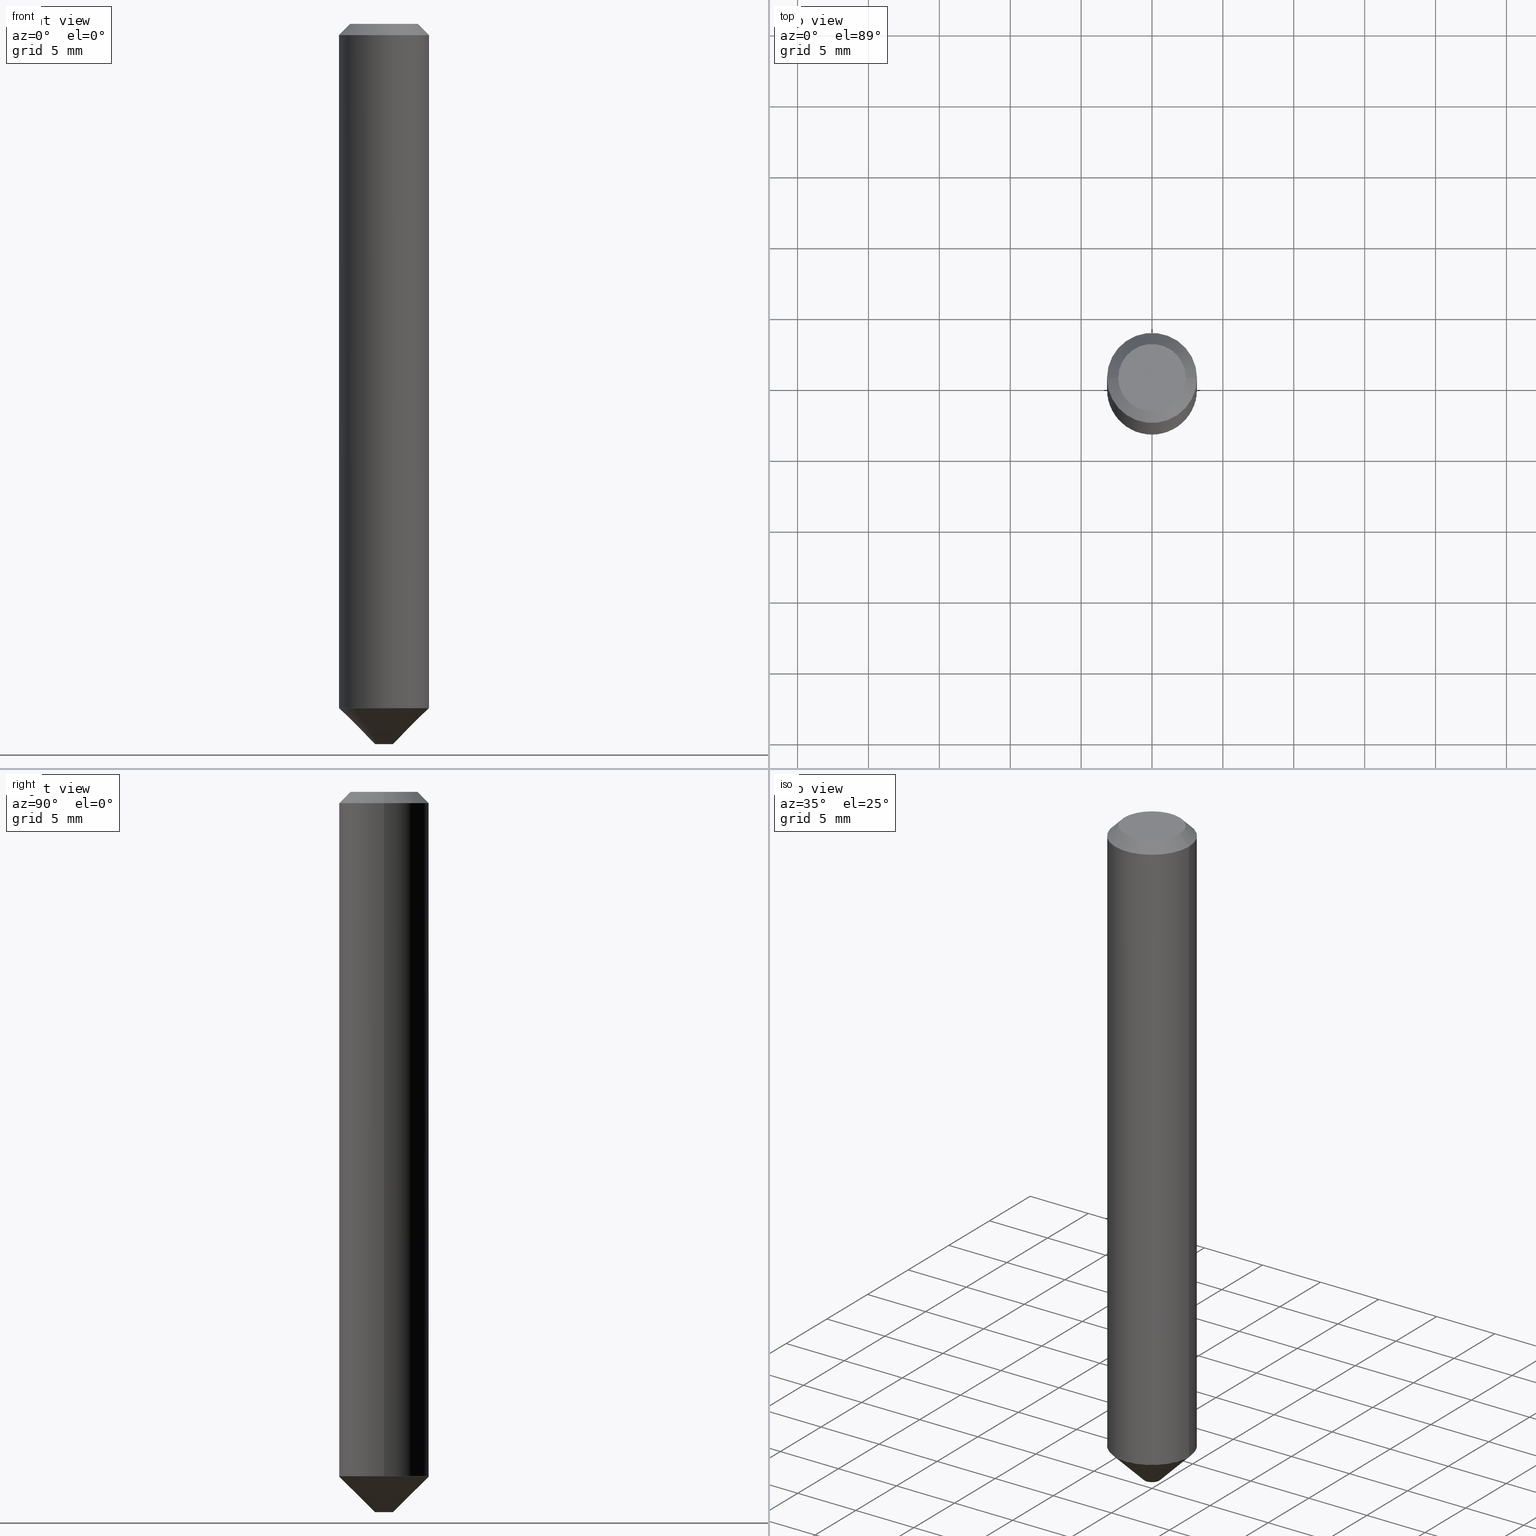
[diagram: canonical four-view strip — front | top / right | iso, engineering-drawing reading convention]
A machine part, canonical four-view strip (front | top / right | iso — engineering-drawing reading convention). The complete STEP part file that produces these views, byte-faithful:
ISO-10303-21;
HEADER;
FILE_DESCRIPTION (( 'STEP AP203' ),
    '1' );
FILE_NAME ('74255.STEP',
    '2025-06-20T12:14:39',
    ( '' ),
    ( '' ),
    'SwSTEP 2.0',
    'SolidWorks 2024',
    '' );
FILE_SCHEMA (( 'CONFIG_CONTROL_DESIGN' ));
ENDSEC;

DATA;
#1 = CYLINDRICAL_SURFACE ( 'NONE', #378, 0.1250000000000001388 ) ;
#2 = DIRECTION ( 'NONE',  ( -1.000000000000000000, 6.982962677686265922E-15, -4.876176775795935793E-29 ) ) ;
#3 = CC_DESIGN_PERSON_AND_ORGANIZATION_ASSIGNMENT ( #387, #102, ( #209 ) ) ;
#4 = ORIENTED_EDGE ( 'NONE', *, *, #87, .F. ) ;
#5 = CONICAL_SURFACE ( 'NONE', #336, 0.1250000000000002498, 0.7853981633981995669 ) ;
#6 = DIRECTION ( 'NONE',  ( -2.433702413238368813E-29, 3.508331483244413015E-15, 1.000000000000000000 ) ) ;
#7 = CALENDAR_DATE ( 2025, 20, 6 ) ;
#8 = ORIENTED_EDGE ( 'NONE', *, *, #40, .T. ) ;
#9 = DATE_AND_TIME ( #238, #385 ) ;
#10 = AXIS2_PLACEMENT_3D ( 'NONE', #352, #349, #2 ) ;
#11 = LOCAL_TIME ( 8, 14, 39.00000000000000000, #391 ) ;
#12 = APPROVAL_DATE_TIME ( #9, #74 ) ;
#13 = LINE ( 'NONE', #178, #41 ) ;
#14 = DIRECTION ( 'NONE',  ( -2.445468806185136597E-29, 3.491481338843145583E-15, 1.000000000000000000 ) ) ;
#15 = CARTESIAN_POINT ( 'NONE',  ( 4.890937612370273194E-29, -6.982962677686291165E-15, -2.000000000000000000 ) ) ;
#16 = CONICAL_SURFACE ( 'NONE', #22, 0.1250000000000002498, 0.7853981633981995669 ) ;
#17 = LOCAL_TIME ( 8, 14, 39.00000000000000000, #297 ) ;
#18 = ORIENTED_EDGE ( 'NONE', *, *, #314, .F. ) ;
#19 = EDGE_CURVE ( 'NONE', #244, #246, #93, .T. ) ;
#20 = CARTESIAN_POINT ( 'NONE',  ( 4.646390731751759422E-29, -6.633814543801976252E-15, -1.899999999999999911 ) ) ;
#21 = FACE_OUTER_BOUND ( 'NONE', #273, .T. ) ;
#22 = AXIS2_PLACEMENT_3D ( 'NONE', #165, #47, #267 ) ;
#23 = APPROVAL_PERSON_ORGANIZATION ( #230, #74, #270 ) ;
#24 = CARTESIAN_POINT ( 'NONE',  ( 4.647607582958377980E-29, -6.635568709543598311E-15, -1.900499999999999856 ) ) ;
#25 = ADVANCED_FACE ( 'NONE', ( #291 ), #191, .F. ) ;
#26 = DIRECTION ( 'NONE',  ( -0.7071067811865452413, 2.468850131082233000E-15, -0.7071067811865497932 ) ) ;
#27 = CARTESIAN_POINT ( 'NONE',  ( 7.642090019328606165E-31, -1.091087918388490760E-16, -0.03125000000000022204 ) ) ;
#28 = DIRECTION ( 'NONE',  ( 0.7071067811865452413, -7.319954787623248157E-15, -0.7071067811865497932 ) ) ;
#29 = ORIENTED_EDGE ( 'NONE', *, *, #163, .F. ) ;
#30 = AXIS2_PLACEMENT_3D ( 'NONE', #395, #174, #361 ) ;
#31 = PRODUCT_DEFINITION_FORMATION_WITH_SPECIFIED_SOURCE ( 'ANY', '', #373, .NOT_KNOWN. ) ;
#32 = DIRECTION ( 'NONE',  ( -4.851104656541626918E-15, -0.7071067811866466046, -0.7071067811864484298 ) ) ;
#33 = EDGE_LOOP ( 'NONE', ( #406, #159, #4, #100 ) ) ;
#34 = APPROVAL ( #394, 'UNSPECIFIED' ) ;
#35 = CARTESIAN_POINT ( 'NONE',  ( -5.237222008264224744E-16, -0.02500000000000698885, -2.000000000000000444 ) ) ;
#36 = AXIS2_PLACEMENT_3D ( 'NONE', #358, #213, #206 ) ;
#37 = ADVANCED_FACE ( 'NONE', ( #193 ), #177, .T. ) ;
#38 = ORIENTED_EDGE ( 'NONE', *, *, #180, .T. ) ;
#39 = CLOSED_SHELL ( 'NONE', ( #329, #386, #106, #261, #208, #129, #285, #25 ) ) ;
#40 = EDGE_CURVE ( 'NONE', #322, #204, #233, .T. ) ;
#41 = VECTOR ( 'NONE', #143, 39.37007874015748143 ) ;
#42 = DIRECTION ( 'NONE',  ( 4.937700262165222518E-15, 0.7071067811866417196, -0.7071067811864533148 ) ) ;
#43 = COORDINATED_UNIVERSAL_TIME_OFFSET ( 5, 0, .BEHIND. ) ;
#44 = CARTESIAN_POINT ( 'NONE',  ( 1.735134032663218057E-29, -1.080289983533779942E-14, -1.899999999999999911 ) ) ;
#45 = PERSON_AND_ORGANIZATION_ROLE ( 'creator' ) ;
#46 = DIRECTION ( 'NONE',  ( -2.445468806185136597E-29, 3.491481338843145583E-15, 1.000000000000000000 ) ) ;
#47 = DIRECTION ( 'NONE',  ( -2.445468806185136597E-29, 3.491481338843145583E-15, 1.000000000000000000 ) ) ;
#48 = AXIS2_PLACEMENT_3D ( 'NONE', #58, #262, #135 ) ;
#49 = EDGE_CURVE ( 'NONE', #308, #79, #317, .T. ) ;
#50 = ORGANIZATION ( 'UNSPECIFIED', 'UNSPECIFIED', '' ) ;
#51 = DIRECTION ( 'NONE',  ( 0.7071067811870787034, -2.468850131087820502E-15, 0.7071067811860163310 ) ) ;
#52 = PRODUCT_DEFINITION_SHAPE ( 'NONE', 'NONE',  #115 ) ;
#53 = DIRECTION ( 'NONE',  ( 2.433702413238368813E-29, -3.508331483244413410E-15, -1.000000000000000000 ) ) ;
#54 = EDGE_LOOP ( 'NONE', ( #249, #229, #311, #294 ) ) ;
#55 = DIRECTION ( 'NONE',  ( 2.438088387897960049E-29, -3.491481338843145188E-15, -1.000000000000000000 ) ) ;
#56 = AXIS2_PLACEMENT_3D ( 'NONE', #414, #95, #403 ) ;
#57 = CARTESIAN_POINT ( 'NONE',  ( 4.646390731751758301E-29, -6.633814543801974674E-15, -1.899999999999999467 ) ) ;
#58 = CARTESIAN_POINT ( 'NONE',  ( -9.358861080966640236E-47, 1.336197326842803670E-32, 3.827021247335477232E-18 ) ) ;
#59 = DIRECTION ( 'NONE',  ( -6.982962677686265922E-15, -1.000000000000000000, 4.370956789862820361E-15 ) ) ;
#60 =( LENGTH_UNIT ( ) NAMED_UNIT ( * ) SI_UNIT ( $, .METRE. ) );
#61 = ORIENTED_EDGE ( 'NONE', *, *, #404, .F. ) ;
#62 = CIRCLE ( 'NONE', #48, 0.09374999999999998612 ) ;
#63 = DIRECTION ( 'NONE',  ( 6.982962677686265133E-15, 1.000000000000000000, -4.388510833195603583E-15 ) ) ;
#64 = VERTEX_POINT ( 'NONE', #131 ) ;
#65 = DIRECTION ( 'NONE',  ( 0.000000000000000000, 0.000000000000000000, 1.000000000000000000 ) ) ;
#66 = EDGE_CURVE ( 'NONE', #244, #278, #62, .T. ) ;
#67 = EDGE_LOOP ( 'NONE', ( #402, #376 ) ) ;
#68 = CIRCLE ( 'NONE', #389, 0.1250000000000000278 ) ;
#69 = PERSON_AND_ORGANIZATION_ROLE ( 'creator' ) ;
#70 = VECTOR ( 'NONE', #32, 39.37007874015748143 ) ;
#71 = DATE_AND_TIME ( #300, #17 ) ;
#72 = VERTEX_POINT ( 'NONE', #382 ) ;
#73 =( NAMED_UNIT ( * ) SI_UNIT ( $, .STERADIAN. ) SOLID_ANGLE_UNIT ( ) );
#74 = APPROVAL ( #350, 'UNSPECIFIED' ) ;
#75 = CALENDAR_DATE ( 2025, 20, 6 ) ;
#76 = DIRECTION ( 'NONE',  ( -2.433702413238368813E-29, 3.508331483244413015E-15, 1.000000000000000000 ) ) ;
#77 = CARTESIAN_POINT ( 'NONE',  ( 7.642090019328606165E-31, -1.091087918388490760E-16, -0.03125000000000022204 ) ) ;
#78 = ADVANCED_FACE ( 'NONE', ( #231 ), #323, .T. ) ;
#79 = VERTEX_POINT ( 'NONE', #364 ) ;
#80 = CARTESIAN_POINT ( 'NONE',  ( -0.09374999999999998612, 7.092071469525108711E-16, 3.827021247330707859E-18 ) ) ;
#81 = AXIS2_PLACEMENT_3D ( 'NONE', #109, #359, #341 ) ;
#82 = CIRCLE ( 'NONE', #179, 0.02500000000000000486 ) ;
#83 = CC_DESIGN_APPROVAL ( #175, ( #209 ) ) ;
#84 = EDGE_LOOP ( 'NONE', ( #61, #128, #168, #124 ) ) ;
#85 = LINE ( 'NONE', #126, #326 ) ;
#86 = ORIENTED_EDGE ( 'NONE', *, *, #180, .F. ) ;
#87 = EDGE_CURVE ( 'NONE', #223, #64, #290, .T. ) ;
#88 = FACE_OUTER_BOUND ( 'NONE', #257, .T. ) ;
#89 = ORIENTED_EDGE ( 'NONE', *, *, #224, .F. ) ;
#90 = EDGE_CURVE ( 'NONE', #266, #246, #68, .T. ) ;
#91 = DIRECTION ( 'NONE',  ( -4.950059904243031787E-15, -0.7088767522788980147, 0.7053323685175109103 ) ) ;
#92 = VECTOR ( 'NONE', #28, 39.37007874015748143 ) ;
#93 = LINE ( 'NONE', #315, #396 ) ;
#94 = VECTOR ( 'NONE', #318, 39.37007874015748143 ) ;
#95 = DIRECTION ( 'NONE',  ( 2.433702413238368813E-29, -3.508331483244413410E-15, -1.000000000000000000 ) ) ;
#96 = ORIENTED_EDGE ( 'NONE', *, *, #248, .F. ) ;
#97 = DIRECTION ( 'NONE',  ( -2.445468806185136597E-29, 3.491481338843145583E-15, 1.000000000000000000 ) ) ;
#98 = APPLICATION_PROTOCOL_DEFINITION ( 'international standard', 'config_control_design', 1994, #247 ) ;
#99 = VERTEX_POINT ( 'NONE', #35 ) ;
#100 = ORIENTED_EDGE ( 'NONE', *, *, #292, .F. ) ;
#101 = CC_DESIGN_PERSON_AND_ORGANIZATION_ASSIGNMENT ( #268, #69, ( #31 ) ) ;
#102 = PERSON_AND_ORGANIZATION_ROLE ( 'classification_officer' ) ;
#103 = ORIENTED_EDGE ( 'NONE', *, *, #235, .F. ) ;
#104 = COORDINATED_UNIVERSAL_TIME_OFFSET ( 5, 0, .BEHIND. ) ;
#105 = CARTESIAN_POINT ( 'NONE',  ( 0.1250000000000002498, -7.504939137843339665E-15, -1.899499999999999966 ) ) ;
#106 = ADVANCED_FACE ( 'NONE', ( #272 ), #5, .T. ) ;
#107 =( NAMED_UNIT ( * ) PLANE_ANGLE_UNIT ( ) SI_UNIT ( $, .RADIAN. ) );
#108 = APPROVAL_ROLE ( '' ) ;
#109 = CARTESIAN_POINT ( 'NONE',  ( 4.647607582958377980E-29, -6.635568709543598311E-15, -1.900499999999999856 ) ) ;
#110 = DATE_AND_TIME ( #75, #271 ) ;
#111 = AXIS2_PLACEMENT_3D ( 'NONE', #44, #6, #325 ) ;
#112 = DIRECTION ( 'NONE',  ( 1.000000000000000000, -6.982962677686266711E-15, 4.876176775795935793E-29 ) ) ;
#113 = CC_DESIGN_APPROVAL ( #34, ( #31 ) ) ;
#114 = ORIENTED_EDGE ( 'NONE', *, *, #19, .F. ) ;
#115 = PRODUCT_DEFINITION ( 'UNKNOWN', '', #31, #164 ) ;
#116 = CARTESIAN_POINT ( 'NONE',  ( 7.642090019328606165E-31, -1.091087918388490760E-16, -0.03125000000000022204 ) ) ;
#117 = APPLICATION_CONTEXT ( 'configuration controlled 3d designs of mechanical parts and assemblies' ) ;
#118 = ORIENTED_EDGE ( 'NONE', *, *, #66, .F. ) ;
#119 = CARTESIAN_POINT ( 'NONE',  ( 4.889760973075597116E-29, -6.984647692126418776E-15, -2.000000000000000444 ) ) ;
#120 = CARTESIAN_POINT ( 'NONE',  ( 4.889760973075597116E-29, -6.984647692126418776E-15, -2.000000000000000444 ) ) ;
#121 = ORIENTED_EDGE ( 'NONE', *, *, #274, .T. ) ;
#122 = DIRECTION ( 'NONE',  ( -2.445468806185136597E-29, 3.491481338843145583E-15, 1.000000000000000000 ) ) ;
#123 = EDGE_CURVE ( 'NONE', #322, #79, #296, .T. ) ;
#124 = ORIENTED_EDGE ( 'NONE', *, *, #274, .F. ) ;
#125 = DIRECTION ( 'NONE',  ( 6.982962677686265133E-15, 1.000000000000000000, -4.388510833195603583E-15 ) ) ;
#126 = CARTESIAN_POINT ( 'NONE',  ( 0.1250000000000002498, -7.504939137843339665E-15, -1.899499999999999966 ) ) ;
#127 = CIRCLE ( 'NONE', #307, 0.02500000000000000486 ) ;
#128 = ORIENTED_EDGE ( 'NONE', *, *, #237, .T. ) ;
#129 = ADVANCED_FACE ( 'NONE', ( #243 ), #400, .T. ) ;
#130 = PLANE ( 'NONE',  #320 ) ;
#131 = CARTESIAN_POINT ( 'NONE',  ( -0.1250000000000002498, -5.743890383432428727E-15, -1.899499999999999966 ) ) ;
#132 = DIRECTION ( 'NONE',  ( 1.000000000000000000, -6.982962677686266711E-15, 4.876176775795935793E-29 ) ) ;
#133 = DIRECTION ( 'NONE',  ( 6.982962677686265133E-15, 1.000000000000000000, -4.388510833195603583E-15 ) ) ;
#134 = PERSON_AND_ORGANIZATION_ROLE ( 'design_owner' ) ;
#135 = DIRECTION ( 'NONE',  ( 1.000000000000000000, -6.982962677686266711E-15, 4.875989565238656407E-29 ) ) ;
#136 = DIRECTION ( 'NONE',  ( 1.000000000000000000, -6.982962677686264344E-15, 0.000000000000000000 ) ) ;
#137 = DATE_AND_TIME ( #7, #218 ) ;
#138 = SHAPE_DEFINITION_REPRESENTATION ( #52, #150 ) ;
#139 = EDGE_LOOP ( 'NONE', ( #215, #152, #306, #182 ) ) ;
#140 = CIRCLE ( 'NONE', #275, 0.1250000000000000278 ) ;
#141 = PERSON_AND_ORGANIZATION ( #232, #50 ) ;
#142 = ADVANCED_FACE ( 'NONE', ( #239 ), #401, .F. ) ;
#143 = DIRECTION ( 'NONE',  ( -0.7071067811870787034, 7.493145998872274248E-15, 0.7071067811860163310 ) ) ;
#144 = APPLICATION_PROTOCOL_DEFINITION ( 'international standard', 'config_control_design', 1994, #117 ) ;
#145 = APPROVAL_ROLE ( '' ) ;
#146 = CC_DESIGN_PERSON_AND_ORGANIZATION_ASSIGNMENT ( #141, #212, ( #31 ) ) ;
#147 = EDGE_LOOP ( 'NONE', ( #96, #221, #374, #114 ) ) ;
#148 = AXIS2_PLACEMENT_3D ( 'NONE', #15, #76, #365 ) ;
#149 = DIRECTION ( 'NONE',  ( 6.982962677686266711E-15, 1.000000000000000000, 0.000000000000000000 ) ) ;
#150 = ADVANCED_BREP_SHAPE_REPRESENTATION ( '74255', ( #199, #195, #390 ), #398 ) ;
#151 = DIRECTION ( 'NONE',  ( 2.433702413238368813E-29, -3.508331483244413410E-15, -1.000000000000000000 ) ) ;
#152 = ORIENTED_EDGE ( 'NONE', *, *, #303, .T. ) ;
#153 = CARTESIAN_POINT ( 'NONE',  ( -0.1250000000000000278, -2.482410377785575114E-15, -0.03125000000000022204 ) ) ;
#154 = CIRCLE ( 'NONE', #384, 0.09374999999999998612 ) ;
#155 = CONICAL_SURFACE ( 'NONE', #337, 0.1250000000000000278, 0.7879044238140346934 ) ;
#156 = DIRECTION ( 'NONE',  ( -2.433702413238368813E-29, 3.508331483244413410E-15, 1.000000000000000000 ) ) ;
#157 = CARTESIAN_POINT ( 'NONE',  ( 4.646390731751759422E-29, -6.633814543801976252E-15, -1.899999999999999911 ) ) ;
#158 = DIRECTION ( 'NONE',  ( -1.000000000000000000, 6.982962677686265922E-15, 0.000000000000000000 ) ) ;
#159 = ORIENTED_EDGE ( 'NONE', *, *, #224, .T. ) ;
#160 = CARTESIAN_POINT ( 'NONE',  ( 7.642090019328606165E-31, -1.091087918388490760E-16, -0.03125000000000022204 ) ) ;
#161 = AXIS2_PLACEMENT_3D ( 'NONE', #57, #253, #372 ) ;
#162 = CARTESIAN_POINT ( 'NONE',  ( 0.000000000000000000, 0.000000000000000000, 0.000000000000000000 ) ) ;
#163 = EDGE_CURVE ( 'NONE', #371, #72, #355, .T. ) ;
#164 = DESIGN_CONTEXT ( 'detailed design', #247, 'design' ) ;
#165 = CARTESIAN_POINT ( 'NONE',  ( 4.645167997348666620E-29, -6.632068803132554748E-15, -1.899499999999999966 ) ) ;
#166 = AXIS2_PLACEMENT_3D ( 'NONE', #304, #392, #245 ) ;
#167 = APPROVAL_PERSON_ORGANIZATION ( #388, #175, #145 ) ;
#168 = ORIENTED_EDGE ( 'NONE', *, *, #123, .T. ) ;
#169 = EDGE_CURVE ( 'NONE', #308, #99, #127, .T. ) ;
#170 = AXIS2_PLACEMENT_3D ( 'NONE', #160, #279, #407 ) ;
#171 = DATE_TIME_ROLE ( 'creation_date' ) ;
#172 = DIRECTION ( 'NONE',  ( 1.000000000000000000, -6.982962677686265922E-15, 0.000000000000000000 ) ) ;
#173 = SECURITY_CLASSIFICATION_LEVEL ( 'unclassified' ) ;
#174 = DIRECTION ( 'NONE',  ( -2.445468806185136597E-29, 3.491481338843145583E-15, 1.000000000000000000 ) ) ;
#175 = APPROVAL ( #354, 'UNSPECIFIED' ) ;
#176 = DIRECTION ( 'NONE',  ( -2.445468806185136597E-29, 3.491481338843145583E-15, 1.000000000000000000 ) ) ;
#177 = CONICAL_SURFACE ( 'NONE', #413, 0.1244999999999999996, 0.7853981633975849475 ) ;
#178 = CARTESIAN_POINT ( 'NONE',  ( -0.1250000000000002498, -5.743890383432428727E-15, -1.899499999999999966 ) ) ;
#179 = AXIS2_PLACEMENT_3D ( 'NONE', #120, #222, #189 ) ;
#180 = EDGE_CURVE ( 'NONE', #246, #266, #140, .T. ) ;
#181 = CARTESIAN_POINT ( 'NONE',  ( 0.1250000000000000278, -9.819791265496326367E-16, -0.03125000000000022204 ) ) ;
#182 = ORIENTED_EDGE ( 'NONE', *, *, #348, .F. ) ;
#183 = CC_DESIGN_DATE_AND_TIME_ASSIGNMENT ( #110, #236, ( #209 ) ) ;
#184 = DIRECTION ( 'NONE',  ( -2.445468806185136877E-29, 3.491481338843145188E-15, 1.000000000000000000 ) ) ;
#185 = ORIENTED_EDGE ( 'NONE', *, *, #255, .F. ) ;
#186 = FACE_OUTER_BOUND ( 'NONE', #327, .T. ) ;
#187 = CIRCLE ( 'NONE', #81, 0.1250000000000000278 ) ;
#188 = ORIENTED_EDGE ( 'NONE', *, *, #19, .T. ) ;
#189 = DIRECTION ( 'NONE',  ( 6.982962677686266711E-15, 1.000000000000000000, 0.000000000000000000 ) ) ;
#190 = PRODUCT_RELATED_PRODUCT_CATEGORY ( 'detail', '', ( #373 ) ) ;
#191 = PLANE ( 'NONE',  #10 ) ;
#192 = CARTESIAN_POINT ( 'NONE',  ( 5.329070518201229444E-16, 0.02499999999999302433, -2.000000000000000444 ) ) ;
#193 = FACE_OUTER_BOUND ( 'NONE', #84, .T. ) ;
#194 = LINE ( 'NONE', #381, #70 ) ;
#195 = MANIFOLD_SOLID_BREP ( 'Body-Move/Copy2[2]', #39 ) ;
#196 = CC_DESIGN_APPROVAL ( #74, ( #115 ) ) ;
#197 = ORIENTED_EDGE ( 'NONE', *, *, #169, .T. ) ;
#198 = CARTESIAN_POINT ( 'NONE',  ( 4.646390731751759422E-29, -6.633814543801976252E-15, -1.899999999999999911 ) ) ;
#199 = MANIFOLD_SOLID_BREP ( 'Body-Move/Copy2[1]', #351 ) ;
#200 = EDGE_CURVE ( 'NONE', #64, #223, #265, .T. ) ;
#201 = VECTOR ( 'NONE', #412, 39.37007874015748143 ) ;
#202 = APPROVAL_PERSON_ORGANIZATION ( #331, #34, #108 ) ;
#203 = CALENDAR_DATE ( 2025, 20, 6 ) ;
#204 = VERTEX_POINT ( 'NONE', #214 ) ;
#205 = APPROVAL_DATE_TIME ( #393, #175 ) ;
#206 = DIRECTION ( 'NONE',  ( 1.000000000000000000, -6.982962677686265922E-15, 0.000000000000000000 ) ) ;
#207 = VECTOR ( 'NONE', #42, 39.37007874015748143 ) ;
#208 = ADVANCED_FACE ( 'NONE', ( #302 ), #16, .T. ) ;
#209 = SECURITY_CLASSIFICATION ( '', '', #173 ) ;
#210 = PERSON_AND_ORGANIZATION ( #232, #50 ) ;
#211 = DIRECTION ( 'NONE',  ( -2.445468806185136597E-29, 3.491481338843145583E-15, 1.000000000000000000 ) ) ;
#212 = PERSON_AND_ORGANIZATION_ROLE ( 'design_supplier' ) ;
#213 = DIRECTION ( 'NONE',  ( -2.445468806185136597E-29, 3.491481338843145583E-15, 1.000000000000000000 ) ) ;
#214 = CARTESIAN_POINT ( 'NONE',  ( -8.558471252219521474E-16, -0.1245000000000066331, -1.899999999999999467 ) ) ;
#215 = ORIENTED_EDGE ( 'NONE', *, *, #87, .T. ) ;
#216 = VECTOR ( 'NONE', #184, 39.37007874015748143 ) ;
#217 = FACE_OUTER_BOUND ( 'NONE', #328, .T. ) ;
#218 = LOCAL_TIME ( 8, 14, 39.00000000000000000, #104 ) ;
#219 = ORIENTED_EDGE ( 'NONE', *, *, #163, .T. ) ;
#220 = DIRECTION ( 'NONE',  ( 2.445468806185136597E-29, -3.491481338843145583E-15, -1.000000000000000000 ) ) ;
#221 = ORIENTED_EDGE ( 'NONE', *, *, #255, .T. ) ;
#222 = DIRECTION ( 'NONE',  ( 2.433702413238368813E-29, -3.508331483244413410E-15, -1.000000000000000000 ) ) ;
#223 = VERTEX_POINT ( 'NONE', #105 ) ;
#224 = EDGE_CURVE ( 'NONE', #371, #64, #13, .T. ) ;
#225 = CARTESIAN_POINT ( 'NONE',  ( -0.1250000000000001388, 8.881784197001262184E-16, -6.148668862818638533E-30 ) ) ;
#226 = EDGE_LOOP ( 'NONE', ( #416, #197 ) ) ;
#227 = CARTESIAN_POINT ( 'NONE',  ( 0.09374999999999998612, -8.049213644256858150E-16, 3.827021247340580176E-18 ) ) ;
#228 = DIRECTION ( 'NONE',  ( 1.000000000000000000, 0.000000000000000000, 0.000000000000000000 ) ) ;
#229 = ORIENTED_EDGE ( 'NONE', *, *, #49, .T. ) ;
#230 = PERSON_AND_ORGANIZATION ( #232, #50 ) ;
#231 = FACE_OUTER_BOUND ( 'NONE', #335, .T. ) ;
#232 = PERSON ( 'UNSPECIFIED', 'UNSPECIFIED', 'UNSPECIFIED', ('UNSPECIFIED'), ('UNSPECIFIED'), ('UNSPECIFIED') ) ;
#233 = CIRCLE ( 'NONE', #250, 0.1244999999999999996 ) ;
#234 = ORIENTED_EDGE ( 'NONE', *, *, #292, .T. ) ;
#235 = EDGE_CURVE ( 'NONE', #79, #277, #187, .T. ) ;
#236 = DATE_TIME_ROLE ( 'classification_date' ) ;
#237 = EDGE_CURVE ( 'NONE', #204, #322, #242, .T. ) ;
#238 = CALENDAR_DATE ( 2025, 20, 6 ) ;
#239 = FACE_OUTER_BOUND ( 'NONE', #226, .T. ) ;
#240 = APPROVAL_DATE_TIME ( #137, #34 ) ;
#241 = DIRECTION ( 'NONE',  ( 2.433702413238368813E-29, -3.508331483244413410E-15, -1.000000000000000000 ) ) ;
#242 = CIRCLE ( 'NONE', #56, 0.1244999999999999996 ) ;
#243 = FACE_OUTER_BOUND ( 'NONE', #339, .T. ) ;
#244 = VERTEX_POINT ( 'NONE', #80 ) ;
#245 = DIRECTION ( 'NONE',  ( 1.000000000000000000, -6.982962677686264344E-15, 0.000000000000000000 ) ) ;
#246 = VERTEX_POINT ( 'NONE', #153 ) ;
#247 = APPLICATION_CONTEXT ( 'configuration controlled 3d designs of mechanical parts and assemblies' ) ;
#248 = EDGE_CURVE ( 'NONE', #278, #244, #154, .T. ) ;
#249 = ORIENTED_EDGE ( 'NONE', *, *, #169, .F. ) ;
#250 = AXIS2_PLACEMENT_3D ( 'NONE', #198, #288, #63 ) ;
#251 = CARTESIAN_POINT ( 'NONE',  ( 8.693788533719864800E-16, 0.1244999999999933521, -1.900000000000000577 ) ) ;
#252 = ORIENTED_EDGE ( 'NONE', *, *, #200, .T. ) ;
#253 = DIRECTION ( 'NONE',  ( -2.445468806185136597E-29, 3.491481338843145583E-15, 1.000000000000000000 ) ) ;
#254 = ORIENTED_EDGE ( 'NONE', *, *, #123, .F. ) ;
#255 = EDGE_CURVE ( 'NONE', #278, #266, #289, .T. ) ;
#256 = DIRECTION ( 'NONE',  ( -6.982962677686265922E-15, -1.000000000000000000, 4.370956789862820361E-15 ) ) ;
#257 = EDGE_LOOP ( 'NONE', ( #8, #280, #103, #254 ) ) ;
#258 = DIRECTION ( 'NONE',  ( 6.982962677686265922E-15, 1.000000000000000000, -4.370956789862820361E-15 ) ) ;
#259 = LINE ( 'NONE', #225, #216 ) ;
#260 = PERSON_AND_ORGANIZATION ( #232, #50 ) ;
#261 = ADVANCED_FACE ( 'NONE', ( #21 ), #130, .T. ) ;
#262 = DIRECTION ( 'NONE',  ( -2.445468806185136597E-29, 3.491481338843145583E-15, 1.000000000000000000 ) ) ;
#263 = CC_DESIGN_PERSON_AND_ORGANIZATION_ASSIGNMENT ( #260, #134, ( #373 ) ) ;
#264 = ORIENTED_EDGE ( 'NONE', *, *, #40, .F. ) ;
#265 = CIRCLE ( 'NONE', #166, 0.1250000000000002498 ) ;
#266 = VERTEX_POINT ( 'NONE', #181 ) ;
#267 = DIRECTION ( 'NONE',  ( 1.000000000000000000, -6.982962677686264344E-15, 0.000000000000000000 ) ) ;
#268 = PERSON_AND_ORGANIZATION ( #232, #50 ) ;
#269 = ORIENTED_EDGE ( 'NONE', *, *, #303, .F. ) ;
#270 = APPROVAL_ROLE ( '' ) ;
#271 = LOCAL_TIME ( 8, 14, 39.00000000000000000, #332 ) ;
#272 = FACE_OUTER_BOUND ( 'NONE', #33, .T. ) ;
#273 = EDGE_LOOP ( 'NONE', ( #408, #29 ) ) ;
#274 = EDGE_CURVE ( 'NONE', #277, #79, #281, .T. ) ;
#275 = AXIS2_PLACEMENT_3D ( 'NONE', #77, #176, #172 ) ;
#276 = CARTESIAN_POINT ( 'NONE',  ( 8.693788533719864800E-16, 0.1244999999999933521, -1.900000000000000577 ) ) ;
#277 = VERTEX_POINT ( 'NONE', #338 ) ;
#278 = VERTEX_POINT ( 'NONE', #227 ) ;
#279 = DIRECTION ( 'NONE',  ( 2.445468806185136597E-29, -3.491481338843145583E-15, -1.000000000000000000 ) ) ;
#280 = ORIENTED_EDGE ( 'NONE', *, *, #404, .T. ) ;
#281 = CIRCLE ( 'NONE', #301, 0.1250000000000000278 ) ;
#282 = DIRECTION ( 'NONE',  ( -2.433702413238368813E-29, 3.508331483244413410E-15, 1.000000000000000000 ) ) ;
#283 = ADVANCED_FACE ( 'NONE', ( #186 ), #342, .T. ) ;
#284 = CARTESIAN_POINT ( 'NONE',  ( 0.1250000000000000278, -9.666710415602907432E-16, -0.03125000000000022204 ) ) ;
#285 = ADVANCED_FACE ( 'NONE', ( #217 ), #377, .T. ) ;
#286 = DIRECTION ( 'NONE',  ( 2.433702413238368813E-29, -3.508331483244413410E-15, -1.000000000000000000 ) ) ;
#287 = LINE ( 'NONE', #411, #343 ) ;
#288 = DIRECTION ( 'NONE',  ( 2.433702413238368813E-29, -3.508331483244413410E-15, -1.000000000000000000 ) ) ;
#289 = LINE ( 'NONE', #284, #92 ) ;
#290 = CIRCLE ( 'NONE', #30, 0.1250000000000002498 ) ;
#291 = FACE_OUTER_BOUND ( 'NONE', #67, .T. ) ;
#292 = EDGE_CURVE ( 'NONE', #72, #223, #85, .T. ) ;
#293 = FACE_OUTER_BOUND ( 'NONE', #139, .T. ) ;
#294 = ORIENTED_EDGE ( 'NONE', *, *, #383, .F. ) ;
#295 = EDGE_CURVE ( 'NONE', #72, #371, #366, .T. ) ;
#296 = LINE ( 'NONE', #276, #207 ) ;
#297 = COORDINATED_UNIVERSAL_TIME_OFFSET ( 5, 0, .BEHIND. ) ;
#298 = ORIENTED_EDGE ( 'NONE', *, *, #237, .F. ) ;
#299 = LENGTH_MEASURE_WITH_UNIT ( LENGTH_MEASURE( 0.02539999999999999897 ), #60 );
#300 = CALENDAR_DATE ( 2025, 20, 6 ) ;
#301 = AXIS2_PLACEMENT_3D ( 'NONE', #379, #53, #258 ) ;
#302 = FACE_OUTER_BOUND ( 'NONE', #356, .T. ) ;
#303 = EDGE_CURVE ( 'NONE', #64, #246, #259, .T. ) ;
#304 = CARTESIAN_POINT ( 'NONE',  ( 4.645167997348666620E-29, -6.632068803132554748E-15, -1.899499999999999966 ) ) ;
#305 = ADVANCED_FACE ( 'NONE', ( #88 ), #319, .T. ) ;
#306 = ORIENTED_EDGE ( 'NONE', *, *, #90, .F. ) ;
#307 = AXIS2_PLACEMENT_3D ( 'NONE', #119, #241, #149 ) ;
#308 = VERTEX_POINT ( 'NONE', #192 ) ;
#309 = DIRECTION ( 'NONE',  ( -1.000000000000000000, 6.982962677686265922E-15, -4.876176775795935793E-29 ) ) ;
#310 = CARTESIAN_POINT ( 'NONE',  ( -9.358861080966640236E-47, 1.336197326842803670E-32, 3.827021247335477232E-18 ) ) ;
#311 = ORIENTED_EDGE ( 'NONE', *, *, #235, .T. ) ;
#312 = AXIS2_PLACEMENT_3D ( 'NONE', #330, #211, #112 ) ;
#313 = FACE_OUTER_BOUND ( 'NONE', #54, .T. ) ;
#314 = EDGE_CURVE ( 'NONE', #99, #308, #82, .T. ) ;
#315 = CARTESIAN_POINT ( 'NONE',  ( -0.1250000000000000278, 7.637615428719344354E-16, -0.03125000000000022204 ) ) ;
#316 = CARTESIAN_POINT ( 'NONE',  ( 4.646390731751758861E-29, -6.633814543801975463E-15, -1.899999999999999689 ) ) ;
#317 = LINE ( 'NONE', #345, #201 ) ;
#318 = DIRECTION ( 'NONE',  ( -2.445468806185136877E-29, 3.491481338843145188E-15, 1.000000000000000000 ) ) ;
#319 = CONICAL_SURFACE ( 'NONE', #405, 0.1244999999999999996, 0.7853981633975849475 ) ;
#320 = AXIS2_PLACEMENT_3D ( 'NONE', #316, #55, #309 ) ;
#321 = CC_DESIGN_SECURITY_CLASSIFICATION ( #209, ( #31 ) ) ;
#322 = VERTEX_POINT ( 'NONE', #251 ) ;
#323 = PLANE ( 'NONE',  #111 ) ;
#324 = UNCERTAINTY_MEASURE_WITH_UNIT (LENGTH_MEASURE( 1.000000000000000082E-05 ), #357, 'distance_accuracy_value', 'NONE');
#325 = DIRECTION ( 'NONE',  ( -6.982962677686265922E-15, -1.000000000000000000, 3.508331483244413015E-15 ) ) ;
#326 = VECTOR ( 'NONE', #51, 39.37007874015748143 ) ;
#327 = EDGE_LOOP ( 'NONE', ( #380, #18, #367, #121 ) ) ;
#328 = EDGE_LOOP ( 'NONE', ( #185, #118, #188, #38 ) ) ;
#329 = ADVANCED_FACE ( 'NONE', ( #370 ), #368, .T. ) ;
#330 = CARTESIAN_POINT ( 'NONE',  ( 0.000000000000000000, 0.000000000000000000, 0.000000000000000000 ) ) ;
#331 = PERSON_AND_ORGANIZATION ( #232, #50 ) ;
#332 = COORDINATED_UNIVERSAL_TIME_OFFSET ( 5, 0, .BEHIND. ) ;
#333 = DIRECTION ( 'NONE',  ( 1.000000000000000000, -6.982962677686265922E-15, 0.000000000000000000 ) ) ;
#334 = CARTESIAN_POINT ( 'NONE',  ( 4.645167997348666620E-29, -6.632068803132554748E-15, -1.899499999999999966 ) ) ;
#335 = EDGE_LOOP ( 'NONE', ( #264, #298 ) ) ;
#336 = AXIS2_PLACEMENT_3D ( 'NONE', #334, #14, #136 ) ;
#337 = AXIS2_PLACEMENT_3D ( 'NONE', #24, #156, #256 ) ;
#338 = CARTESIAN_POINT ( 'NONE',  ( -8.575622497213958886E-16, -0.1250000000000068001, -1.900499999999999412 ) ) ;
#339 = EDGE_LOOP ( 'NONE', ( #269, #252, #363, #86 ) ) ;
#340 = CARTESIAN_POINT ( 'NONE',  ( 0.1250000000000001388, -8.728703347107843249E-16, 6.095220969744926748E-30 ) ) ;
#341 = DIRECTION ( 'NONE',  ( 6.982962677686265922E-15, 1.000000000000000000, -4.370956789862820361E-15 ) ) ;
#342 = CONICAL_SURFACE ( 'NONE', #397, 0.1250000000000000278, 0.7879044238140346934 ) ;
#343 = VECTOR ( 'NONE', #91, 39.37007874015748143 ) ;
#344 = DIRECTION ( 'NONE',  ( 1.000000000000000000, -6.982962677686266711E-15, 4.875989565238656407E-29 ) ) ;
#345 = CARTESIAN_POINT ( 'NONE',  ( 8.881784197001717751E-16, 0.1249999999999933942, -1.900500000000000300 ) ) ;
#346 = CARTESIAN_POINT ( 'NONE',  ( 4.647607582958377980E-29, -6.635568709543598311E-15, -1.900499999999999856 ) ) ;
#347 = CARTESIAN_POINT ( 'NONE',  ( 0.000000000000000000, 0.000000000000000000, 0.000000000000000000 ) ) ;
#348 = EDGE_CURVE ( 'NONE', #223, #266, #409, .T. ) ;
#349 = DIRECTION ( 'NONE',  ( 2.438088387897960049E-29, -3.491481338843145188E-15, -1.000000000000000000 ) ) ;
#350 = APPROVAL_STATUS ( 'not_yet_approved' ) ;
#351 = CLOSED_SHELL ( 'NONE', ( #353, #305, #37, #78, #142, #283 ) ) ;
#352 = CARTESIAN_POINT ( 'NONE',  ( -4.679430540483320118E-47, 6.680986634214018350E-33, 1.913510623667738616E-18 ) ) ;
#353 = ADVANCED_FACE ( 'NONE', ( #313 ), #155, .T. ) ;
#354 = APPROVAL_STATUS ( 'not_yet_approved' ) ;
#355 = CIRCLE ( 'NONE', #36, 0.1245000000000001383 ) ;
#356 = EDGE_LOOP ( 'NONE', ( #89, #219, #234, #399 ) ) ;
#357 =( CONVERSION_BASED_UNIT ( 'INCH', #299 ) LENGTH_UNIT ( ) NAMED_UNIT ( #362 ) );
#358 = CARTESIAN_POINT ( 'NONE',  ( 4.646390731751758301E-29, -6.633814543801974674E-15, -1.899999999999999467 ) ) ;
#359 = DIRECTION ( 'NONE',  ( 2.433702413238368813E-29, -3.508331483244413410E-15, -1.000000000000000000 ) ) ;
#360 = CC_DESIGN_PERSON_AND_ORGANIZATION_ASSIGNMENT ( #210, #45, ( #115 ) ) ;
#361 = DIRECTION ( 'NONE',  ( 1.000000000000000000, -6.982962677686264344E-15, 0.000000000000000000 ) ) ;
#362 = DIMENSIONAL_EXPONENTS ( 1.000000000000000000, 0.000000000000000000, 0.000000000000000000, 0.000000000000000000, 0.000000000000000000, 0.000000000000000000, 0.000000000000000000 ) ;
#363 = ORIENTED_EDGE ( 'NONE', *, *, #348, .T. ) ;
#364 = CARTESIAN_POINT ( 'NONE',  ( 8.728703347108291914E-16, 0.1249999999999932693, -1.900500000000000300 ) ) ;
#365 = DIRECTION ( 'NONE',  ( -6.982962677686265922E-15, -1.000000000000000000, 3.508331483244413015E-15 ) ) ;
#366 = CIRCLE ( 'NONE', #161, 0.1245000000000001383 ) ;
#367 = ORIENTED_EDGE ( 'NONE', *, *, #383, .T. ) ;
#368 = CONICAL_SURFACE ( 'NONE', #369, 0.1250000000000000278, 0.7853981633974450594 ) ;
#369 = AXIS2_PLACEMENT_3D ( 'NONE', #27, #220, #158 ) ;
#370 = FACE_OUTER_BOUND ( 'NONE', #147, .T. ) ;
#371 = VERTEX_POINT ( 'NONE', #375 ) ;
#372 = DIRECTION ( 'NONE',  ( 1.000000000000000000, -6.982962677686265922E-15, 0.000000000000000000 ) ) ;
#373 = PRODUCT ( '74255', '74255', '', ( #415 ) ) ;
#374 = ORIENTED_EDGE ( 'NONE', *, *, #90, .T. ) ;
#375 = CARTESIAN_POINT ( 'NONE',  ( -0.1245000000000001383, -5.746539610606538351E-15, -1.899999999999999467 ) ) ;
#376 = ORIENTED_EDGE ( 'NONE', *, *, #248, .T. ) ;
#377 = CONICAL_SURFACE ( 'NONE', #170, 0.1250000000000000278, 0.7853981633974450594 ) ;
#378 = AXIS2_PLACEMENT_3D ( 'NONE', #162, #97, #132 ) ;
#379 = CARTESIAN_POINT ( 'NONE',  ( 4.647607582958377980E-29, -6.635568709543598311E-15, -1.900499999999999856 ) ) ;
#380 = ORIENTED_EDGE ( 'NONE', *, *, #49, .F. ) ;
#381 = CARTESIAN_POINT ( 'NONE',  ( -8.541320007225090965E-16, -0.1245000000000066331, -1.899999999999999467 ) ) ;
#382 = CARTESIAN_POINT ( 'NONE',  ( 0.1245000000000001383, -7.503193397173915795E-15, -1.899999999999999467 ) ) ;
#383 = EDGE_CURVE ( 'NONE', #99, #277, #287, .T. ) ;
#384 = AXIS2_PLACEMENT_3D ( 'NONE', #310, #122, #344 ) ;
#385 = LOCAL_TIME ( 8, 14, 39.00000000000000000, #43 ) ;
#386 = ADVANCED_FACE ( 'NONE', ( #293 ), #1, .T. ) ;
#387 = PERSON_AND_ORGANIZATION ( #232, #50 ) ;
#388 = PERSON_AND_ORGANIZATION ( #232, #50 ) ;
#389 = AXIS2_PLACEMENT_3D ( 'NONE', #116, #46, #333 ) ;
#390 = AXIS2_PLACEMENT_3D ( 'NONE', #347, #65, #228 ) ;
#391 = COORDINATED_UNIVERSAL_TIME_OFFSET ( 5, 0, .BEHIND. ) ;
#392 = DIRECTION ( 'NONE',  ( -2.445468806185136597E-29, 3.491481338843145583E-15, 1.000000000000000000 ) ) ;
#393 = DATE_AND_TIME ( #203, #11 ) ;
#394 = APPROVAL_STATUS ( 'not_yet_approved' ) ;
#395 = CARTESIAN_POINT ( 'NONE',  ( 4.645167997348666620E-29, -6.632068803132554748E-15, -1.899499999999999966 ) ) ;
#396 = VECTOR ( 'NONE', #26, 39.37007874015748143 ) ;
#397 = AXIS2_PLACEMENT_3D ( 'NONE', #346, #282, #59 ) ;
#398 =( GEOMETRIC_REPRESENTATION_CONTEXT ( 3 ) GLOBAL_UNCERTAINTY_ASSIGNED_CONTEXT ( ( #324 ) ) GLOBAL_UNIT_ASSIGNED_CONTEXT ( ( #357, #107, #73 ) ) REPRESENTATION_CONTEXT ( 'NONE', 'WORKASPACE' ) );
#399 = ORIENTED_EDGE ( 'NONE', *, *, #200, .F. ) ;
#400 = CYLINDRICAL_SURFACE ( 'NONE', #312, 0.1250000000000001388 ) ;
#401 = PLANE ( 'NONE',  #148 ) ;
#402 = ORIENTED_EDGE ( 'NONE', *, *, #66, .T. ) ;
#403 = DIRECTION ( 'NONE',  ( 6.982962677686265133E-15, 1.000000000000000000, -4.388510833195603583E-15 ) ) ;
#404 = EDGE_CURVE ( 'NONE', #204, #277, #194, .T. ) ;
#405 = AXIS2_PLACEMENT_3D ( 'NONE', #20, #151, #125 ) ;
#406 = ORIENTED_EDGE ( 'NONE', *, *, #295, .T. ) ;
#407 = DIRECTION ( 'NONE',  ( -1.000000000000000000, 6.982962677686265922E-15, 0.000000000000000000 ) ) ;
#408 = ORIENTED_EDGE ( 'NONE', *, *, #295, .F. ) ;
#409 = LINE ( 'NONE', #340, #94 ) ;
#410 = CC_DESIGN_DATE_AND_TIME_ASSIGNMENT ( #71, #171, ( #115 ) ) ;
#411 = CARTESIAN_POINT ( 'NONE',  ( -8.728703347107369932E-16, -0.1250000000000066613, -1.900499999999999412 ) ) ;
#412 = DIRECTION ( 'NONE',  ( 5.036872268809829504E-15, 0.7088767522789028996, 0.7053323685175060254 ) ) ;
#413 = AXIS2_PLACEMENT_3D ( 'NONE', #157, #286, #133 ) ;
#414 = CARTESIAN_POINT ( 'NONE',  ( 4.646390731751759422E-29, -6.633814543801976252E-15, -1.899999999999999911 ) ) ;
#415 = MECHANICAL_CONTEXT ( 'NONE', #117, 'mechanical' ) ;
#416 = ORIENTED_EDGE ( 'NONE', *, *, #314, .T. ) ;
ENDSEC;
END-ISO-10303-21;
